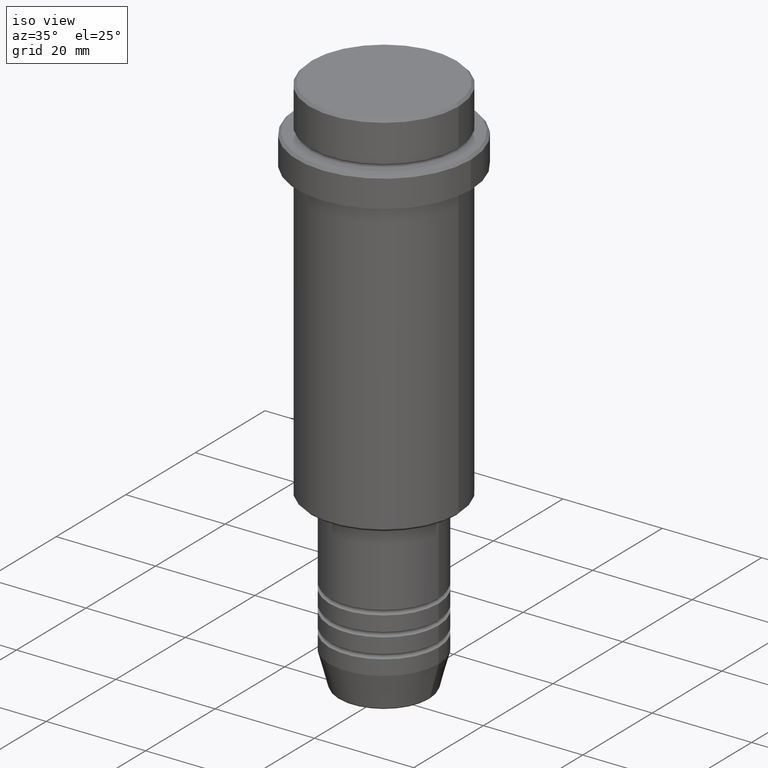
[diagram: clean part render]
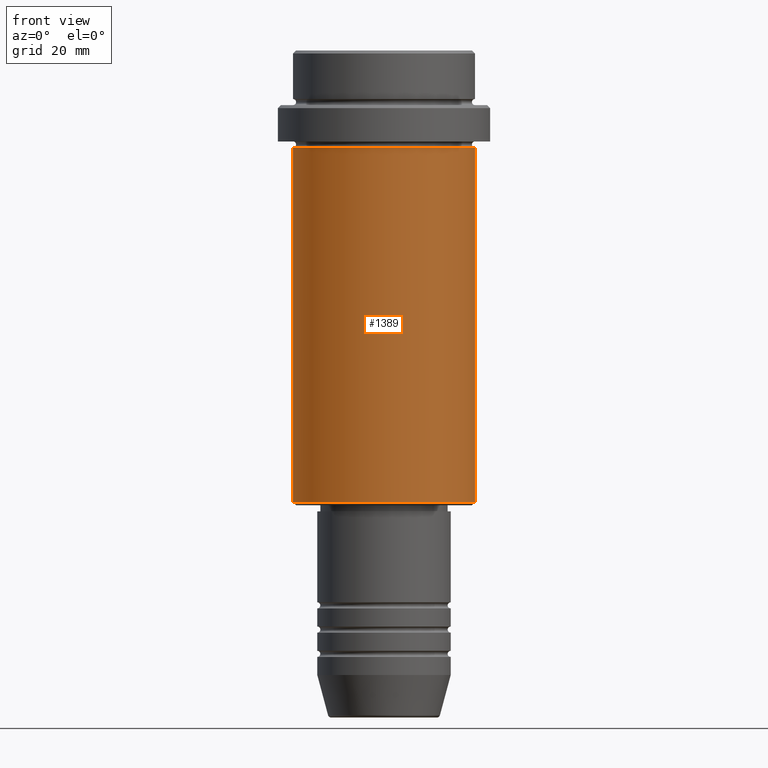
[diagram: tour spotlight — one face highlighted and labeled with its STEP entity id]
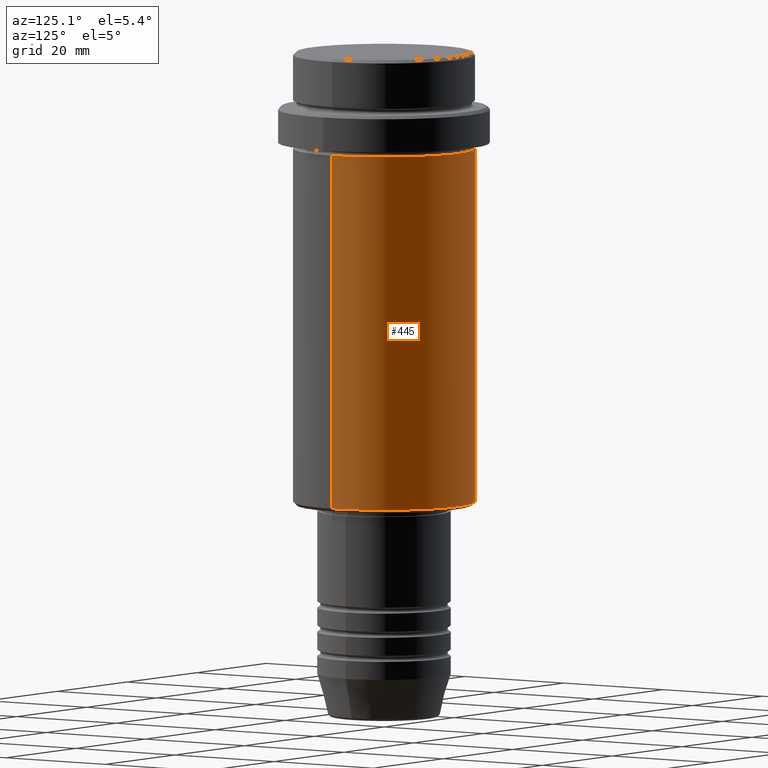
[diagram: tour spotlight — one face highlighted and labeled with its STEP entity id]
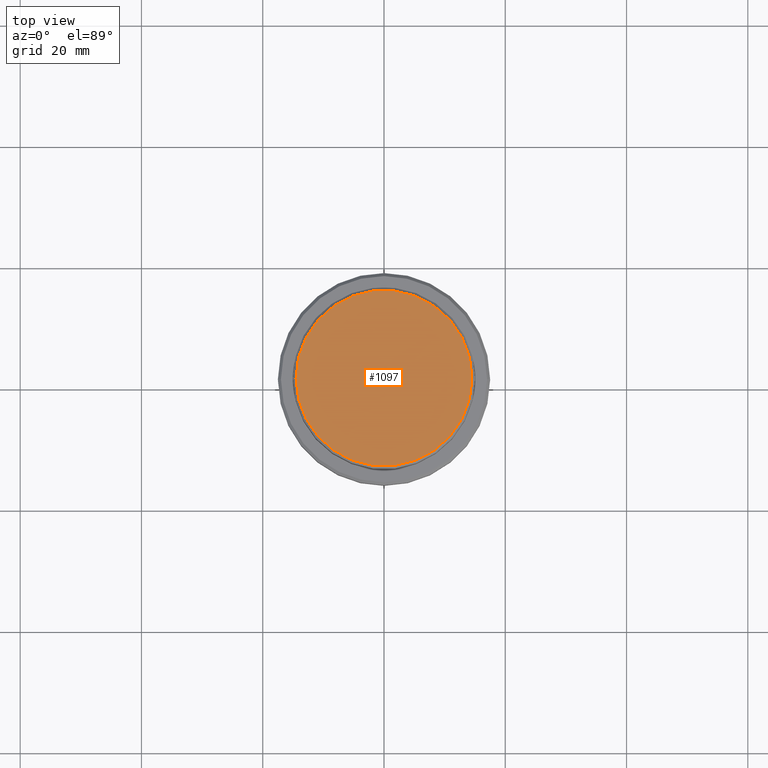
[diagram: tour spotlight — one face highlighted and labeled with its STEP entity id]
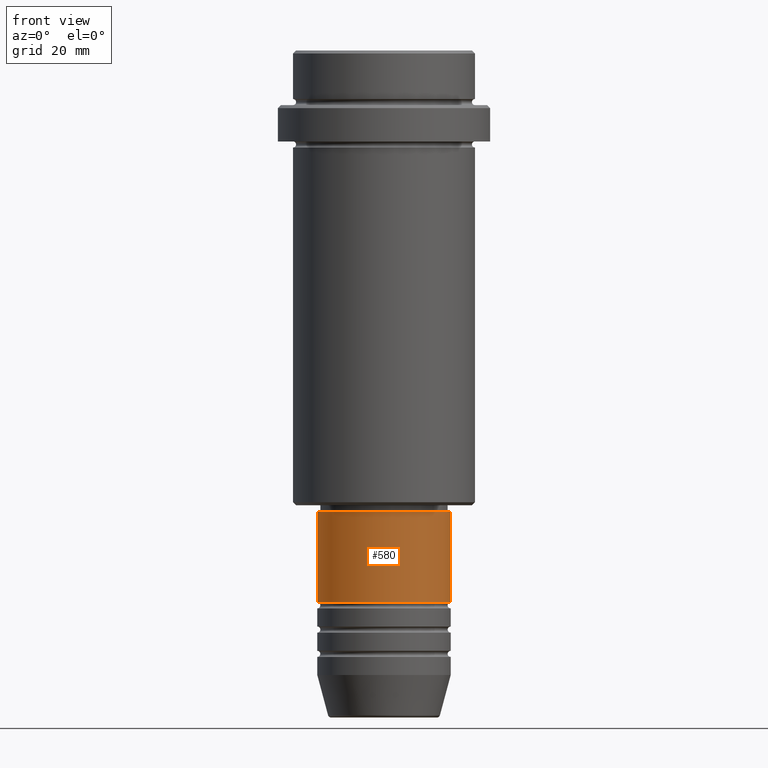
[diagram: tour spotlight — one face highlighted and labeled with its STEP entity id]
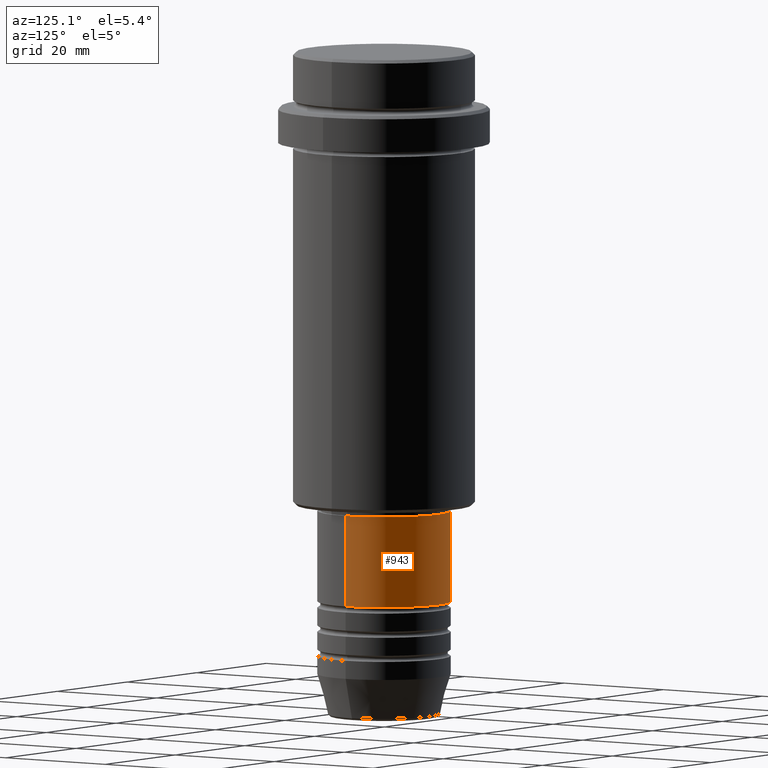
[diagram: tour spotlight — one face highlighted and labeled with its STEP entity id]
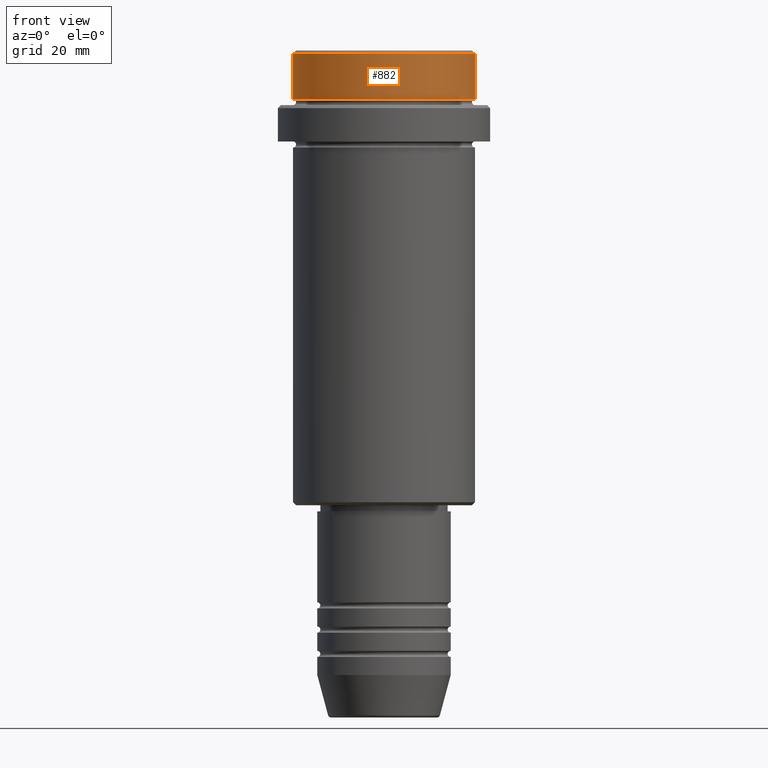
[diagram: tour spotlight — one face highlighted and labeled with its STEP entity id]
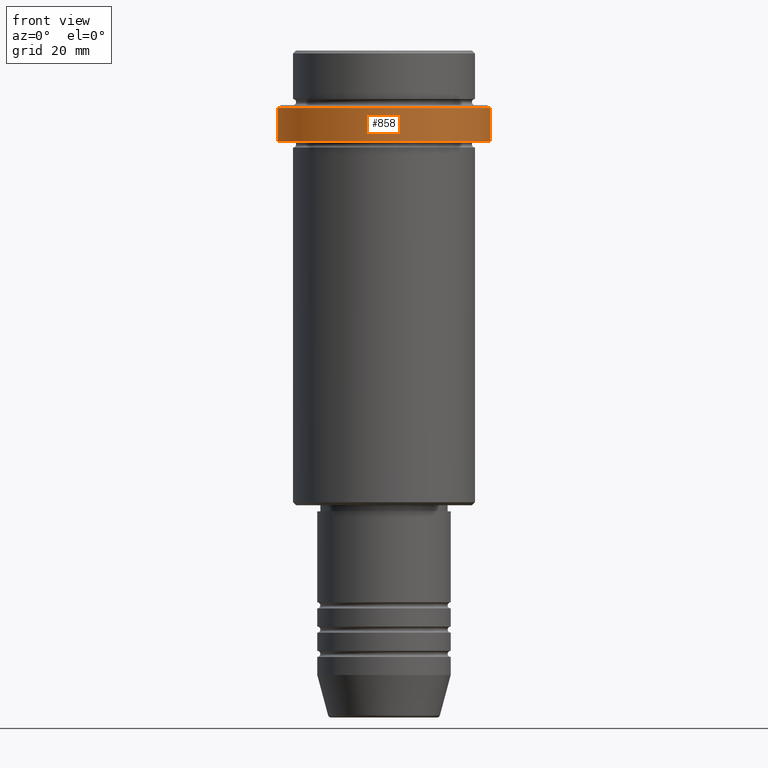
[diagram: tour spotlight — one face highlighted and labeled with its STEP entity id]
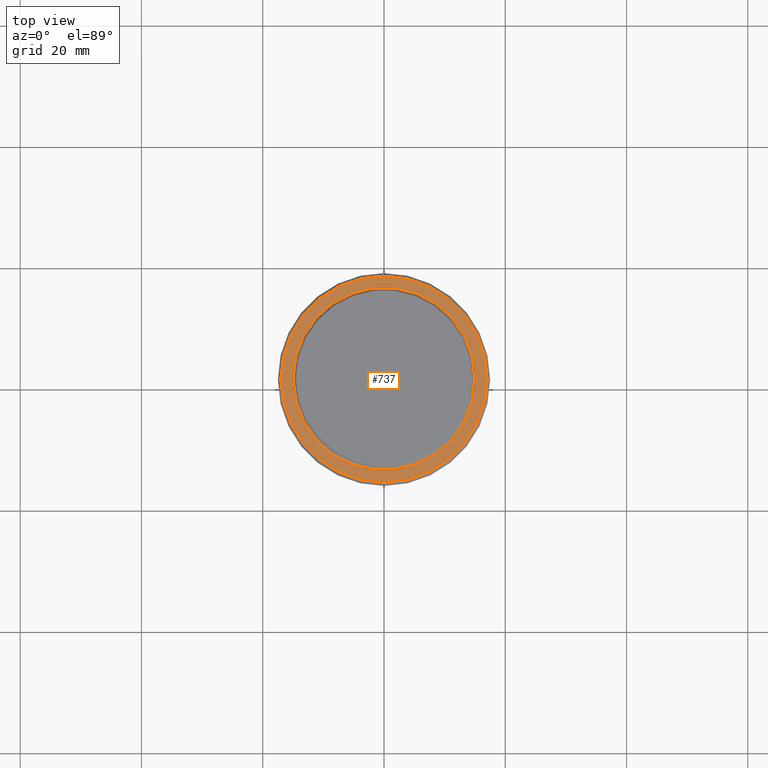
[diagram: tour spotlight — one face highlighted and labeled with its STEP entity id]
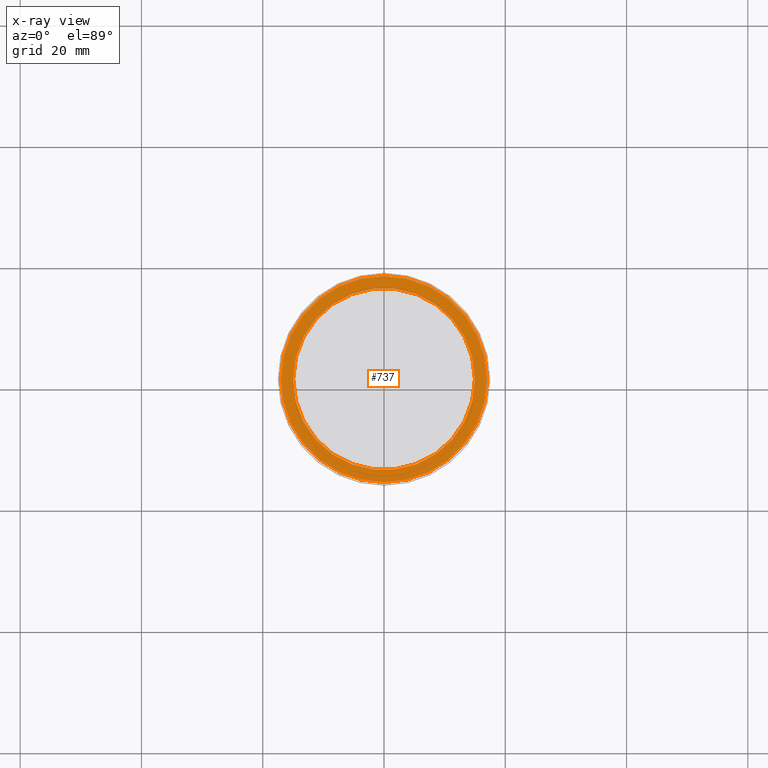
[diagram: x-ray of the same camera — body ghosted, this tour face saturated]
A machine part: a face-by-face anatomy tour. The part has 52 B-rep faces; the first image is the clean iso view, then the 8 largest visible faces are spotlighted one at a time (largest first), each with its STEP entity span.

Face 1 — front view, entity #1389. In plain terms, the highlighted cylindrical surface (partial cylindrical patch) has radius 15 mm, axis along (-0, -0, 1).
Definition (entity closure, byte-faithful):
#4 = LINE ( 'NONE', #1199, #727 ) ;
#28 = EDGE_CURVE ( 'NONE', #230, #324, #4, .T. ) ;
#100 = LINE ( 'NONE', #1203, #415 ) ;
#124 = DIRECTION ( 'NONE',  ( -0.000000000000000000, -0.000000000000000000, 1.000000000000000000 ) ) ;
#188 = VERTEX_POINT ( 'NONE', #1123 ) ;
#220 = DIRECTION ( 'NONE',  ( -0.000000000000000000, -0.000000000000000000, 1.000000000000000000 ) ) ;
#230 = VERTEX_POINT ( 'NONE', #301 ) ;
#252 = CARTESIAN_POINT ( 'NONE',  ( 0.000000000000000000, 0.000000000000000000, 0.000000000000000000 ) ) ;
#256 = ORIENTED_EDGE ( 'NONE', *, *, #321, .F. ) ;
#301 = CARTESIAN_POINT ( 'NONE',  ( 15.00000000000000000, 0.000000000000000000, -74.50000000000001421 ) ) ;
#321 = EDGE_CURVE ( 'NONE', #939, #324, #920, .T. ) ;
#324 = VERTEX_POINT ( 'NONE', #977 ) ;
#415 = VECTOR ( 'NONE', #220, 1000.000000000000000 ) ;
#463 = FACE_OUTER_BOUND ( 'NONE', #1351, .T. ) ;
#478 = CYLINDRICAL_SURFACE ( 'NONE', #1013, 15.00000000000000000 ) ;
#484 = CARTESIAN_POINT ( 'NONE',  ( -15.00000000000000355, 1.836970198721029983E-15, -16.00000000000000000 ) ) ;
#496 = AXIS2_PLACEMENT_3D ( 'NONE', #948, #1165, #1361 ) ;
#703 = DIRECTION ( 'NONE',  ( 1.000000000000000000, 0.000000000000000000, 0.000000000000000000 ) ) ;
#727 = VECTOR ( 'NONE', #905, 1000.000000000000000 ) ;
#865 = DIRECTION ( 'NONE',  ( -1.000000000000000000, 0.000000000000000000, 0.000000000000000000 ) ) ;
#905 = DIRECTION ( 'NONE',  ( -0.000000000000000000, -0.000000000000000000, 1.000000000000000000 ) ) ;
#920 = CIRCLE ( 'NONE', #496, 15.00000000000000178 ) ;
#934 = ORIENTED_EDGE ( 'NONE', *, *, #28, .T. ) ;
#939 = VERTEX_POINT ( 'NONE', #484 ) ;
#948 = CARTESIAN_POINT ( 'NONE',  ( 0.000000000000000000, 0.000000000000000000, -16.00000000000000000 ) ) ;
#977 = CARTESIAN_POINT ( 'NONE',  ( 15.00000000000000178, 0.000000000000000000, -16.00000000000000000 ) ) ;
#1013 = AXIS2_PLACEMENT_3D ( 'NONE', #252, #124, #703 ) ;
#1083 = ORIENTED_EDGE ( 'NONE', *, *, #1234, .F. ) ;
#1094 = DIRECTION ( 'NONE',  ( -0.000000000000000000, -0.000000000000000000, 1.000000000000000000 ) ) ;
#1123 = CARTESIAN_POINT ( 'NONE',  ( -15.00000000000000000, 1.836970198721029589E-15, -74.50000000000001421 ) ) ;
#1165 = DIRECTION ( 'NONE',  ( -0.000000000000000000, -0.000000000000000000, 1.000000000000000000 ) ) ;
#1195 = ORIENTED_EDGE ( 'NONE', *, *, #1261, .T. ) ;
#1199 = CARTESIAN_POINT ( 'NONE',  ( 15.00000000000000000, 0.000000000000000000, 0.000000000000000000 ) ) ;
#1203 = CARTESIAN_POINT ( 'NONE',  ( -15.00000000000000000, 1.836970198721029589E-15, 0.000000000000000000 ) ) ;
#1234 = EDGE_CURVE ( 'NONE', #188, #939, #100, .T. ) ;
#1261 = EDGE_CURVE ( 'NONE', #188, #230, #1271, .T. ) ;
#1271 = CIRCLE ( 'NONE', #1312, 15.00000000000000000 ) ;
#1312 = AXIS2_PLACEMENT_3D ( 'NONE', #1386, #1094, #865 ) ;
#1351 = EDGE_LOOP ( 'NONE', ( #1083, #1195, #934, #256 ) ) ;
#1361 = DIRECTION ( 'NONE',  ( 1.000000000000000000, 0.000000000000000000, 0.000000000000000000 ) ) ;
#1386 = CARTESIAN_POINT ( 'NONE',  ( 0.000000000000000000, 0.000000000000000000, -74.50000000000001421 ) ) ;
#1389 = ADVANCED_FACE ( 'NONE', ( #463 ), #478, .T. ) ;

Face 2 — auxiliary view, entity #445. In plain terms, the highlighted cylindrical surface (partial cylindrical patch) has radius 15 mm, axis along (-0, -0, 1).
Definition (entity closure, byte-faithful):
#4 = LINE ( 'NONE', #1199, #727 ) ;
#5 = CIRCLE ( 'NONE', #620, 15.00000000000000178 ) ;
#28 = EDGE_CURVE ( 'NONE', #230, #324, #4, .T. ) ;
#57 = EDGE_CURVE ( 'NONE', #230, #188, #219, .T. ) ;
#73 = ORIENTED_EDGE ( 'NONE', *, *, #1234, .T. ) ;
#100 = LINE ( 'NONE', #1203, #415 ) ;
#188 = VERTEX_POINT ( 'NONE', #1123 ) ;
#219 = CIRCLE ( 'NONE', #799, 15.00000000000000000 ) ;
#220 = DIRECTION ( 'NONE',  ( -0.000000000000000000, -0.000000000000000000, 1.000000000000000000 ) ) ;
#230 = VERTEX_POINT ( 'NONE', #301 ) ;
#301 = CARTESIAN_POINT ( 'NONE',  ( 15.00000000000000000, 0.000000000000000000, -74.50000000000001421 ) ) ;
#324 = VERTEX_POINT ( 'NONE', #977 ) ;
#415 = VECTOR ( 'NONE', #220, 1000.000000000000000 ) ;
#421 = DIRECTION ( 'NONE',  ( 1.000000000000000000, 0.000000000000000000, 0.000000000000000000 ) ) ;
#444 = DIRECTION ( 'NONE',  ( -0.000000000000000000, -0.000000000000000000, 1.000000000000000000 ) ) ;
#445 = ADVANCED_FACE ( 'NONE', ( #903 ), #1290, .T. ) ;
#484 = CARTESIAN_POINT ( 'NONE',  ( -15.00000000000000355, 1.836970198721029983E-15, -16.00000000000000000 ) ) ;
#514 = CARTESIAN_POINT ( 'NONE',  ( 0.000000000000000000, 0.000000000000000000, -16.00000000000000000 ) ) ;
#620 = AXIS2_PLACEMENT_3D ( 'NONE', #514, #444, #421 ) ;
#666 = CARTESIAN_POINT ( 'NONE',  ( 0.000000000000000000, 0.000000000000000000, 0.000000000000000000 ) ) ;
#700 = ORIENTED_EDGE ( 'NONE', *, *, #57, .T. ) ;
#727 = VECTOR ( 'NONE', #905, 1000.000000000000000 ) ;
#799 = AXIS2_PLACEMENT_3D ( 'NONE', #1099, #1415, #1237 ) ;
#903 = FACE_OUTER_BOUND ( 'NONE', #1075, .T. ) ;
#905 = DIRECTION ( 'NONE',  ( -0.000000000000000000, -0.000000000000000000, 1.000000000000000000 ) ) ;
#939 = VERTEX_POINT ( 'NONE', #484 ) ;
#977 = CARTESIAN_POINT ( 'NONE',  ( 15.00000000000000178, 0.000000000000000000, -16.00000000000000000 ) ) ;
#1026 = AXIS2_PLACEMENT_3D ( 'NONE', #666, #1206, #1210 ) ;
#1075 = EDGE_LOOP ( 'NONE', ( #700, #73, #1274, #1316 ) ) ;
#1099 = CARTESIAN_POINT ( 'NONE',  ( 0.000000000000000000, 0.000000000000000000, -74.50000000000001421 ) ) ;
#1123 = CARTESIAN_POINT ( 'NONE',  ( -15.00000000000000000, 1.836970198721029589E-15, -74.50000000000001421 ) ) ;
#1194 = EDGE_CURVE ( 'NONE', #324, #939, #5, .T. ) ;
#1199 = CARTESIAN_POINT ( 'NONE',  ( 15.00000000000000000, 0.000000000000000000, 0.000000000000000000 ) ) ;
#1203 = CARTESIAN_POINT ( 'NONE',  ( -15.00000000000000000, 1.836970198721029589E-15, 0.000000000000000000 ) ) ;
#1206 = DIRECTION ( 'NONE',  ( -0.000000000000000000, -0.000000000000000000, 1.000000000000000000 ) ) ;
#1210 = DIRECTION ( 'NONE',  ( 1.000000000000000000, 0.000000000000000000, 0.000000000000000000 ) ) ;
#1234 = EDGE_CURVE ( 'NONE', #188, #939, #100, .T. ) ;
#1237 = DIRECTION ( 'NONE',  ( -1.000000000000000000, 0.000000000000000000, 0.000000000000000000 ) ) ;
#1274 = ORIENTED_EDGE ( 'NONE', *, *, #1194, .F. ) ;
#1290 = CYLINDRICAL_SURFACE ( 'NONE', #1026, 15.00000000000000000 ) ;
#1316 = ORIENTED_EDGE ( 'NONE', *, *, #28, .F. ) ;
#1415 = DIRECTION ( 'NONE',  ( -0.000000000000000000, -0.000000000000000000, 1.000000000000000000 ) ) ;

Face 3 — top view, entity #1097. In plain terms, the highlighted planar face has unit normal (0, -0, 1).
Definition (entity closure, byte-faithful):
#79 = DIRECTION ( 'NONE',  ( -0.000000000000000000, -0.000000000000000000, 1.000000000000000000 ) ) ;
#132 = CARTESIAN_POINT ( 'NONE',  ( 0.000000000000000000, 0.000000000000000000, 0.000000000000000000 ) ) ;
#176 = CARTESIAN_POINT ( 'NONE',  ( 14.50000000000002487, 1.806354028742347380E-15, 0.000000000000000000 ) ) ;
#200 = VERTEX_POINT ( 'NONE', #176 ) ;
#268 = CARTESIAN_POINT ( 'NONE',  ( -14.50000000000002487, 0.000000000000000000, 0.000000000000000000 ) ) ;
#274 = DIRECTION ( 'NONE',  ( 1.000000000000000000, 0.000000000000000000, 0.000000000000000000 ) ) ;
#455 = CIRCLE ( 'NONE', #992, 14.50000000000002487 ) ;
#613 = DIRECTION ( 'NONE',  ( 1.000000000000000000, 0.000000000000000000, 0.000000000000000000 ) ) ;
#629 = ORIENTED_EDGE ( 'NONE', *, *, #1416, .T. ) ;
#713 = CARTESIAN_POINT ( 'NONE',  ( 0.000000000000000000, 0.000000000000000000, 0.000000000000000000 ) ) ;
#720 = EDGE_LOOP ( 'NONE', ( #1011, #629 ) ) ;
#743 = PLANE ( 'NONE',  #900 ) ;
#900 = AXIS2_PLACEMENT_3D ( 'NONE', #1063, #941, #613 ) ;
#941 = DIRECTION ( 'NONE',  ( 0.000000000000000000, -0.000000000000000000, 1.000000000000000000 ) ) ;
#992 = AXIS2_PLACEMENT_3D ( 'NONE', #132, #1022, #1219 ) ;
#1011 = ORIENTED_EDGE ( 'NONE', *, *, #1098, .T. ) ;
#1022 = DIRECTION ( 'NONE',  ( -0.000000000000000000, -0.000000000000000000, 1.000000000000000000 ) ) ;
#1032 = AXIS2_PLACEMENT_3D ( 'NONE', #713, #79, #274 ) ;
#1063 = CARTESIAN_POINT ( 'NONE',  ( 0.000000000000000000, 0.000000000000000000, 0.000000000000000000 ) ) ;
#1097 = ADVANCED_FACE ( 'NONE', ( #1273 ), #743, .T. ) ;
#1098 = EDGE_CURVE ( 'NONE', #1125, #200, #1157, .T. ) ;
#1125 = VERTEX_POINT ( 'NONE', #268 ) ;
#1157 = CIRCLE ( 'NONE', #1032, 14.50000000000002487 ) ;
#1219 = DIRECTION ( 'NONE',  ( 1.000000000000000000, 0.000000000000000000, 0.000000000000000000 ) ) ;
#1273 = FACE_OUTER_BOUND ( 'NONE', #720, .T. ) ;
#1416 = EDGE_CURVE ( 'NONE', #200, #1125, #455, .T. ) ;

Face 4 — front view, entity #580. In plain terms, the highlighted cylindrical surface (partial cylindrical patch) has radius 11 mm, axis along (-0, -0, 1).
Definition (entity closure, byte-faithful):
#1 = CIRCLE ( 'NONE', #1090, 11.00000000000000000 ) ;
#2 = DIRECTION ( 'NONE',  ( -0.000000000000000000, -0.000000000000000000, 1.000000000000000000 ) ) ;
#34 = FACE_OUTER_BOUND ( 'NONE', #385, .T. ) ;
#90 = CARTESIAN_POINT ( 'NONE',  ( 0.000000000000000000, 0.000000000000000000, -76.00000000000001421 ) ) ;
#94 = CARTESIAN_POINT ( 'NONE',  ( 11.00000000000000000, 0.000000000000000000, 0.000000000000000000 ) ) ;
#159 = CARTESIAN_POINT ( 'NONE',  ( 0.000000000000000000, 0.000000000000000000, 0.000000000000000000 ) ) ;
#203 = DIRECTION ( 'NONE',  ( -0.000000000000000000, -0.000000000000000000, 1.000000000000000000 ) ) ;
#361 = VERTEX_POINT ( 'NONE', #1412 ) ;
#385 = EDGE_LOOP ( 'NONE', ( #642, #849, #540, #408 ) ) ;
#387 = EDGE_CURVE ( 'NONE', #507, #1241, #1, .T. ) ;
#392 = VECTOR ( 'NONE', #203, 1000.000000000000000 ) ;
#408 = ORIENTED_EDGE ( 'NONE', *, *, #795, .F. ) ;
#451 = DIRECTION ( 'NONE',  ( -0.000000000000000000, -0.000000000000000000, 1.000000000000000000 ) ) ;
#487 = DIRECTION ( 'NONE',  ( 1.000000000000000000, 0.000000000000000000, 0.000000000000000000 ) ) ;
#507 = VERTEX_POINT ( 'NONE', #708 ) ;
#530 = CARTESIAN_POINT ( 'NONE',  ( -10.99999999999999822, 1.347111479062088207E-15, -76.00000000000001421 ) ) ;
#540 = ORIENTED_EDGE ( 'NONE', *, *, #1340, .T. ) ;
#567 = CARTESIAN_POINT ( 'NONE',  ( 0.000000000000000000, 0.000000000000000000, -90.99999999999988631 ) ) ;
#580 = ADVANCED_FACE ( 'NONE', ( #34 ), #688, .T. ) ;
#642 = ORIENTED_EDGE ( 'NONE', *, *, #1208, .F. ) ;
#678 = VERTEX_POINT ( 'NONE', #530 ) ;
#688 = CYLINDRICAL_SURFACE ( 'NONE', #1091, 11.00000000000000000 ) ;
#708 = CARTESIAN_POINT ( 'NONE',  ( -11.00000000000000000, 1.347111479062088405E-15, -90.99999999999988631 ) ) ;
#762 = VECTOR ( 'NONE', #982, 1000.000000000000000 ) ;
#795 = EDGE_CURVE ( 'NONE', #678, #361, #1220, .T. ) ;
#849 = ORIENTED_EDGE ( 'NONE', *, *, #387, .T. ) ;
#868 = DIRECTION ( 'NONE',  ( 1.000000000000000000, 0.000000000000000000, 0.000000000000000000 ) ) ;
#901 = DIRECTION ( 'NONE',  ( 1.000000000000000000, 0.000000000000000000, 0.000000000000000000 ) ) ;
#979 = LINE ( 'NONE', #94, #762 ) ;
#982 = DIRECTION ( 'NONE',  ( -0.000000000000000000, -0.000000000000000000, 1.000000000000000000 ) ) ;
#1085 = CARTESIAN_POINT ( 'NONE',  ( 11.00000000000000000, 0.000000000000000000, -90.99999999999988631 ) ) ;
#1090 = AXIS2_PLACEMENT_3D ( 'NONE', #567, #2, #868 ) ;
#1091 = AXIS2_PLACEMENT_3D ( 'NONE', #159, #1212, #487 ) ;
#1208 = EDGE_CURVE ( 'NONE', #507, #678, #1294, .T. ) ;
#1212 = DIRECTION ( 'NONE',  ( -0.000000000000000000, -0.000000000000000000, 1.000000000000000000 ) ) ;
#1220 = CIRCLE ( 'NONE', #1330, 10.99999999999999822 ) ;
#1241 = VERTEX_POINT ( 'NONE', #1085 ) ;
#1294 = LINE ( 'NONE', #1406, #392 ) ;
#1330 = AXIS2_PLACEMENT_3D ( 'NONE', #90, #451, #901 ) ;
#1340 = EDGE_CURVE ( 'NONE', #1241, #361, #979, .T. ) ;
#1406 = CARTESIAN_POINT ( 'NONE',  ( -11.00000000000000000, 1.347111479062088405E-15, 0.000000000000000000 ) ) ;
#1412 = CARTESIAN_POINT ( 'NONE',  ( 10.99999999999999822, 0.000000000000000000, -76.00000000000001421 ) ) ;

Face 5 — auxiliary view, entity #943. In plain terms, the highlighted cylindrical surface (partial cylindrical patch) has radius 11 mm, axis along (-0, -0, 1).
Definition (entity closure, byte-faithful):
#31 = FACE_OUTER_BOUND ( 'NONE', #1414, .T. ) ;
#94 = CARTESIAN_POINT ( 'NONE',  ( 11.00000000000000000, 0.000000000000000000, 0.000000000000000000 ) ) ;
#147 = CARTESIAN_POINT ( 'NONE',  ( 0.000000000000000000, 0.000000000000000000, -76.00000000000001421 ) ) ;
#203 = DIRECTION ( 'NONE',  ( -0.000000000000000000, -0.000000000000000000, 1.000000000000000000 ) ) ;
#292 = CARTESIAN_POINT ( 'NONE',  ( 0.000000000000000000, 0.000000000000000000, -90.99999999999988631 ) ) ;
#361 = VERTEX_POINT ( 'NONE', #1412 ) ;
#392 = VECTOR ( 'NONE', #203, 1000.000000000000000 ) ;
#452 = CIRCLE ( 'NONE', #1172, 11.00000000000000000 ) ;
#459 = DIRECTION ( 'NONE',  ( 1.000000000000000000, 0.000000000000000000, 0.000000000000000000 ) ) ;
#471 = CARTESIAN_POINT ( 'NONE',  ( 0.000000000000000000, 0.000000000000000000, 0.000000000000000000 ) ) ;
#507 = VERTEX_POINT ( 'NONE', #708 ) ;
#530 = CARTESIAN_POINT ( 'NONE',  ( -10.99999999999999822, 1.347111479062088207E-15, -76.00000000000001421 ) ) ;
#601 = DIRECTION ( 'NONE',  ( -0.000000000000000000, -0.000000000000000000, 1.000000000000000000 ) ) ;
#652 = EDGE_CURVE ( 'NONE', #1241, #507, #452, .T. ) ;
#678 = VERTEX_POINT ( 'NONE', #530 ) ;
#692 = CYLINDRICAL_SURFACE ( 'NONE', #875, 11.00000000000000000 ) ;
#708 = CARTESIAN_POINT ( 'NONE',  ( -11.00000000000000000, 1.347111479062088405E-15, -90.99999999999988631 ) ) ;
#762 = VECTOR ( 'NONE', #982, 1000.000000000000000 ) ;
#803 = AXIS2_PLACEMENT_3D ( 'NONE', #147, #601, #812 ) ;
#807 = ORIENTED_EDGE ( 'NONE', *, *, #1208, .T. ) ;
#812 = DIRECTION ( 'NONE',  ( 1.000000000000000000, 0.000000000000000000, 0.000000000000000000 ) ) ;
#816 = ORIENTED_EDGE ( 'NONE', *, *, #1025, .F. ) ;
#860 = ORIENTED_EDGE ( 'NONE', *, *, #1340, .F. ) ;
#875 = AXIS2_PLACEMENT_3D ( 'NONE', #471, #1014, #459 ) ;
#943 = ADVANCED_FACE ( 'NONE', ( #31 ), #692, .T. ) ;
#975 = ORIENTED_EDGE ( 'NONE', *, *, #652, .T. ) ;
#979 = LINE ( 'NONE', #94, #762 ) ;
#982 = DIRECTION ( 'NONE',  ( -0.000000000000000000, -0.000000000000000000, 1.000000000000000000 ) ) ;
#1014 = DIRECTION ( 'NONE',  ( -0.000000000000000000, -0.000000000000000000, 1.000000000000000000 ) ) ;
#1025 = EDGE_CURVE ( 'NONE', #361, #678, #1403, .T. ) ;
#1064 = DIRECTION ( 'NONE',  ( 1.000000000000000000, 0.000000000000000000, 0.000000000000000000 ) ) ;
#1085 = CARTESIAN_POINT ( 'NONE',  ( 11.00000000000000000, 0.000000000000000000, -90.99999999999988631 ) ) ;
#1172 = AXIS2_PLACEMENT_3D ( 'NONE', #292, #1364, #1064 ) ;
#1208 = EDGE_CURVE ( 'NONE', #507, #678, #1294, .T. ) ;
#1241 = VERTEX_POINT ( 'NONE', #1085 ) ;
#1294 = LINE ( 'NONE', #1406, #392 ) ;
#1340 = EDGE_CURVE ( 'NONE', #1241, #361, #979, .T. ) ;
#1364 = DIRECTION ( 'NONE',  ( -0.000000000000000000, -0.000000000000000000, 1.000000000000000000 ) ) ;
#1403 = CIRCLE ( 'NONE', #803, 10.99999999999999822 ) ;
#1406 = CARTESIAN_POINT ( 'NONE',  ( -11.00000000000000000, 1.347111479062088405E-15, 0.000000000000000000 ) ) ;
#1412 = CARTESIAN_POINT ( 'NONE',  ( 10.99999999999999822, 0.000000000000000000, -76.00000000000001421 ) ) ;
#1414 = EDGE_LOOP ( 'NONE', ( #975, #807, #816, #860 ) ) ;

Face 6 — front view, entity #882. In plain terms, the highlighted cylindrical surface (partial cylindrical patch) has radius 15 mm, axis along (-0, -0, 1).
Definition (entity closure, byte-faithful):
#40 = ORIENTED_EDGE ( 'NONE', *, *, #1387, .T. ) ;
#146 = LINE ( 'NONE', #1317, #1382 ) ;
#156 = EDGE_LOOP ( 'NONE', ( #694, #1058, #40, #302 ) ) ;
#215 = CYLINDRICAL_SURFACE ( 'NONE', #923, 15.00000000000000000 ) ;
#260 = DIRECTION ( 'NONE',  ( -0.000000000000000000, -0.000000000000000000, 1.000000000000000000 ) ) ;
#261 = DIRECTION ( 'NONE',  ( 0.000000000000000000, 0.000000000000000000, -1.000000000000000000 ) ) ;
#279 = DIRECTION ( 'NONE',  ( 1.000000000000000000, 0.000000000000000000, 0.000000000000000000 ) ) ;
#302 = ORIENTED_EDGE ( 'NONE', *, *, #538, .T. ) ;
#312 = VERTEX_POINT ( 'NONE', #1065 ) ;
#313 = AXIS2_PLACEMENT_3D ( 'NONE', #625, #614, #279 ) ;
#346 = DIRECTION ( 'NONE',  ( -0.000000000000000000, -0.000000000000000000, 1.000000000000000000 ) ) ;
#350 = CARTESIAN_POINT ( 'NONE',  ( 15.00000000000000000, 0.000000000000000000, 0.000000000000000000 ) ) ;
#362 = CIRCLE ( 'NONE', #313, 15.00000000000000000 ) ;
#397 = VERTEX_POINT ( 'NONE', #1309 ) ;
#480 = CARTESIAN_POINT ( 'NONE',  ( 0.000000000000000000, 0.000000000000000000, -0.4999999999999692468 ) ) ;
#538 = EDGE_CURVE ( 'NONE', #1028, #397, #1128, .T. ) ;
#614 = DIRECTION ( 'NONE',  ( -0.000000000000000000, -0.000000000000000000, 1.000000000000000000 ) ) ;
#625 = CARTESIAN_POINT ( 'NONE',  ( 0.000000000000000000, 0.000000000000000000, -7.999999999999998224 ) ) ;
#694 = ORIENTED_EDGE ( 'NONE', *, *, #1366, .F. ) ;
#712 = VECTOR ( 'NONE', #260, 1000.000000000000000 ) ;
#723 = EDGE_CURVE ( 'NONE', #312, #1180, #362, .T. ) ;
#776 = DIRECTION ( 'NONE',  ( 1.000000000000000000, 0.000000000000000000, 0.000000000000000000 ) ) ;
#820 = DIRECTION ( 'NONE',  ( 1.000000000000000000, 0.000000000000000000, 0.000000000000000000 ) ) ;
#882 = ADVANCED_FACE ( 'NONE', ( #1185 ), #215, .T. ) ;
#907 = LINE ( 'NONE', #350, #712 ) ;
#922 = AXIS2_PLACEMENT_3D ( 'NONE', #480, #261, #820 ) ;
#923 = AXIS2_PLACEMENT_3D ( 'NONE', #1088, #1408, #776 ) ;
#958 = CARTESIAN_POINT ( 'NONE',  ( 15.00000000000000000, 0.000000000000000000, -7.999999999999998224 ) ) ;
#1028 = VERTEX_POINT ( 'NONE', #1228 ) ;
#1058 = ORIENTED_EDGE ( 'NONE', *, *, #723, .T. ) ;
#1065 = CARTESIAN_POINT ( 'NONE',  ( -15.00000000000000000, 1.836970198721029589E-15, -7.999999999999998224 ) ) ;
#1088 = CARTESIAN_POINT ( 'NONE',  ( 0.000000000000000000, 0.000000000000000000, 0.000000000000000000 ) ) ;
#1128 = CIRCLE ( 'NONE', #922, 15.00000000000000000 ) ;
#1180 = VERTEX_POINT ( 'NONE', #958 ) ;
#1185 = FACE_OUTER_BOUND ( 'NONE', #156, .T. ) ;
#1228 = CARTESIAN_POINT ( 'NONE',  ( 15.00000000000000000, 0.000000000000000000, -0.4999999999999692468 ) ) ;
#1309 = CARTESIAN_POINT ( 'NONE',  ( -15.00000000000000000, 1.836970198721029589E-15, -0.4999999999999692468 ) ) ;
#1317 = CARTESIAN_POINT ( 'NONE',  ( -15.00000000000000000, 1.836970198721029589E-15, 0.000000000000000000 ) ) ;
#1366 = EDGE_CURVE ( 'NONE', #312, #397, #146, .T. ) ;
#1382 = VECTOR ( 'NONE', #346, 1000.000000000000000 ) ;
#1387 = EDGE_CURVE ( 'NONE', #1180, #1028, #907, .T. ) ;
#1408 = DIRECTION ( 'NONE',  ( -0.000000000000000000, -0.000000000000000000, 1.000000000000000000 ) ) ;

Face 7 — front view, entity #858. In plain terms, the highlighted cylindrical surface (partial cylindrical patch) has radius 17.5 mm, axis along (-0, -0, 1).
Definition (entity closure, byte-faithful):
#23 = AXIS2_PLACEMENT_3D ( 'NONE', #936, #474, #255 ) ;
#49 = ORIENTED_EDGE ( 'NONE', *, *, #52, .F. ) ;
#52 = EDGE_CURVE ( 'NONE', #329, #1218, #304, .T. ) ;
#97 = CARTESIAN_POINT ( 'NONE',  ( 0.000000000000000000, 0.000000000000000000, -9.500000000000014211 ) ) ;
#99 = VECTOR ( 'NONE', #821, 1000.000000000000000 ) ;
#111 = DIRECTION ( 'NONE',  ( 1.000000000000000000, 0.000000000000000000, 0.000000000000000000 ) ) ;
#148 = CARTESIAN_POINT ( 'NONE',  ( 17.50000000000000000, 0.000000000000000000, -15.00000000000000000 ) ) ;
#181 = CARTESIAN_POINT ( 'NONE',  ( 17.50000000000000000, 0.000000000000000000, 0.000000000000000000 ) ) ;
#206 = CARTESIAN_POINT ( 'NONE',  ( 17.50000000000000000, 0.000000000000000000, -9.500000000000014211 ) ) ;
#222 = CARTESIAN_POINT ( 'NONE',  ( 0.000000000000000000, 0.000000000000000000, 0.000000000000000000 ) ) ;
#224 = DIRECTION ( 'NONE',  ( 1.000000000000000000, 0.000000000000000000, 0.000000000000000000 ) ) ;
#255 = DIRECTION ( 'NONE',  ( 1.000000000000000000, 0.000000000000000000, 0.000000000000000000 ) ) ;
#304 = LINE ( 'NONE', #552, #99 ) ;
#329 = VERTEX_POINT ( 'NONE', #863 ) ;
#436 = CYLINDRICAL_SURFACE ( 'NONE', #1031, 17.50000000000000000 ) ;
#450 = AXIS2_PLACEMENT_3D ( 'NONE', #97, #655, #224 ) ;
#466 = EDGE_CURVE ( 'NONE', #765, #1218, #596, .T. ) ;
#474 = DIRECTION ( 'NONE',  ( -0.000000000000000000, -0.000000000000000000, 1.000000000000000000 ) ) ;
#506 = EDGE_CURVE ( 'NONE', #329, #568, #707, .T. ) ;
#552 = CARTESIAN_POINT ( 'NONE',  ( -17.50000000000000000, 2.143131898507868248E-15, 0.000000000000000000 ) ) ;
#560 = FACE_OUTER_BOUND ( 'NONE', #610, .T. ) ;
#568 = VERTEX_POINT ( 'NONE', #148 ) ;
#596 = CIRCLE ( 'NONE', #450, 17.50000000000000000 ) ;
#610 = EDGE_LOOP ( 'NONE', ( #49, #755, #978, #689 ) ) ;
#655 = DIRECTION ( 'NONE',  ( 0.000000000000000000, 0.000000000000000000, -1.000000000000000000 ) ) ;
#689 = ORIENTED_EDGE ( 'NONE', *, *, #466, .T. ) ;
#707 = CIRCLE ( 'NONE', #23, 17.50000000000000000 ) ;
#735 = VECTOR ( 'NONE', #855, 1000.000000000000000 ) ;
#755 = ORIENTED_EDGE ( 'NONE', *, *, #506, .T. ) ;
#765 = VERTEX_POINT ( 'NONE', #206 ) ;
#821 = DIRECTION ( 'NONE',  ( -0.000000000000000000, -0.000000000000000000, 1.000000000000000000 ) ) ;
#855 = DIRECTION ( 'NONE',  ( -0.000000000000000000, -0.000000000000000000, 1.000000000000000000 ) ) ;
#858 = ADVANCED_FACE ( 'NONE', ( #560 ), #436, .T. ) ;
#863 = CARTESIAN_POINT ( 'NONE',  ( -17.50000000000000000, 2.143131898507868248E-15, -15.00000000000000000 ) ) ;
#876 = CARTESIAN_POINT ( 'NONE',  ( -17.50000000000000000, 2.143131898507868248E-15, -9.500000000000014211 ) ) ;
#936 = CARTESIAN_POINT ( 'NONE',  ( 0.000000000000000000, 0.000000000000000000, -15.00000000000000000 ) ) ;
#978 = ORIENTED_EDGE ( 'NONE', *, *, #1081, .T. ) ;
#983 = DIRECTION ( 'NONE',  ( -0.000000000000000000, -0.000000000000000000, 1.000000000000000000 ) ) ;
#1031 = AXIS2_PLACEMENT_3D ( 'NONE', #222, #983, #111 ) ;
#1081 = EDGE_CURVE ( 'NONE', #568, #765, #1159, .T. ) ;
#1159 = LINE ( 'NONE', #181, #735 ) ;
#1218 = VERTEX_POINT ( 'NONE', #876 ) ;

Face 8 — top view, entity #737. An x-ray twin of the same camera follows (body ghosted, this face saturated) — the face is partly hidden behind the body. In plain terms, the highlighted planar face has unit normal (0, -0, 1).
Definition (entity closure, byte-faithful):
#11 = EDGE_CURVE ( 'NONE', #319, #430, #756, .T. ) ;
#15 = ORIENTED_EDGE ( 'NONE', *, *, #556, .T. ) ;
#44 = CARTESIAN_POINT ( 'NONE',  ( -14.99999999999999289, 1.836970198721028800E-15, -9.000000000000000000 ) ) ;
#66 = CARTESIAN_POINT ( 'NONE',  ( 0.000000000000000000, 0.000000000000000000, -9.000000000000000000 ) ) ;
#74 = CARTESIAN_POINT ( 'NONE',  ( -16.99999999999998579, 0.000000000000000000, -9.000000000000000000 ) ) ;
#121 = CARTESIAN_POINT ( 'NONE',  ( 0.000000000000000000, 0.000000000000000000, -9.000000000000000000 ) ) ;
#154 = AXIS2_PLACEMENT_3D ( 'NONE', #1170, #889, #647 ) ;
#190 = DIRECTION ( 'NONE',  ( 1.000000000000000000, 0.000000000000000000, 0.000000000000000000 ) ) ;
#217 = CARTESIAN_POINT ( 'NONE',  ( 16.99999999999998579, 2.112515728529183278E-15, -9.000000000000000000 ) ) ;
#286 = AXIS2_PLACEMENT_3D ( 'NONE', #827, #931, #1342 ) ;
#315 = AXIS2_PLACEMENT_3D ( 'NONE', #66, #509, #190 ) ;
#319 = VERTEX_POINT ( 'NONE', #74 ) ;
#378 = EDGE_LOOP ( 'NONE', ( #953, #728 ) ) ;
#407 = PLANE ( 'NONE',  #1196 ) ;
#416 = CARTESIAN_POINT ( 'NONE',  ( 0.000000000000000000, 14.49999999999999467, -9.000000000000000000 ) ) ;
#430 = VERTEX_POINT ( 'NONE', #217 ) ;
#437 = CIRCLE ( 'NONE', #315, 14.99999999999999289 ) ;
#468 = VERTEX_POINT ( 'NONE', #986 ) ;
#476 = CIRCLE ( 'NONE', #286, 14.99999999999999289 ) ;
#509 = DIRECTION ( 'NONE',  ( 0.000000000000000000, 0.000000000000000000, -1.000000000000000000 ) ) ;
#556 = EDGE_CURVE ( 'NONE', #468, #1114, #476, .T. ) ;
#557 = EDGE_LOOP ( 'NONE', ( #15, #1122 ) ) ;
#569 = DIRECTION ( 'NONE',  ( 1.000000000000000000, 0.000000000000000000, 0.000000000000000000 ) ) ;
#644 = DIRECTION ( 'NONE',  ( -0.000000000000000000, -0.000000000000000000, 1.000000000000000000 ) ) ;
#647 = DIRECTION ( 'NONE',  ( 1.000000000000000000, 0.000000000000000000, 0.000000000000000000 ) ) ;
#728 = ORIENTED_EDGE ( 'NONE', *, *, #788, .T. ) ;
#737 = ADVANCED_FACE ( 'NONE', ( #959, #1372 ), #407, .T. ) ;
#744 = DIRECTION ( 'NONE',  ( 1.000000000000000000, 0.000000000000000000, 0.000000000000000000 ) ) ;
#756 = CIRCLE ( 'NONE', #966, 16.99999999999998579 ) ;
#788 = EDGE_CURVE ( 'NONE', #430, #319, #1093, .T. ) ;
#827 = CARTESIAN_POINT ( 'NONE',  ( 0.000000000000000000, 0.000000000000000000, -9.000000000000000000 ) ) ;
#847 = DIRECTION ( 'NONE',  ( 0.000000000000000000, -0.000000000000000000, 1.000000000000000000 ) ) ;
#889 = DIRECTION ( 'NONE',  ( -0.000000000000000000, -0.000000000000000000, 1.000000000000000000 ) ) ;
#931 = DIRECTION ( 'NONE',  ( 0.000000000000000000, 0.000000000000000000, -1.000000000000000000 ) ) ;
#953 = ORIENTED_EDGE ( 'NONE', *, *, #11, .T. ) ;
#959 = FACE_OUTER_BOUND ( 'NONE', #378, .T. ) ;
#966 = AXIS2_PLACEMENT_3D ( 'NONE', #121, #644, #569 ) ;
#986 = CARTESIAN_POINT ( 'NONE',  ( 14.99999999999999289, 0.000000000000000000, -9.000000000000000000 ) ) ;
#1093 = CIRCLE ( 'NONE', #154, 16.99999999999998579 ) ;
#1114 = VERTEX_POINT ( 'NONE', #44 ) ;
#1122 = ORIENTED_EDGE ( 'NONE', *, *, #1178, .T. ) ;
#1170 = CARTESIAN_POINT ( 'NONE',  ( 0.000000000000000000, 0.000000000000000000, -9.000000000000000000 ) ) ;
#1178 = EDGE_CURVE ( 'NONE', #1114, #468, #437, .T. ) ;
#1196 = AXIS2_PLACEMENT_3D ( 'NONE', #416, #847, #744 ) ;
#1342 = DIRECTION ( 'NONE',  ( 1.000000000000000000, 0.000000000000000000, 0.000000000000000000 ) ) ;
#1372 = FACE_BOUND ( 'NONE', #557, .T. ) ;